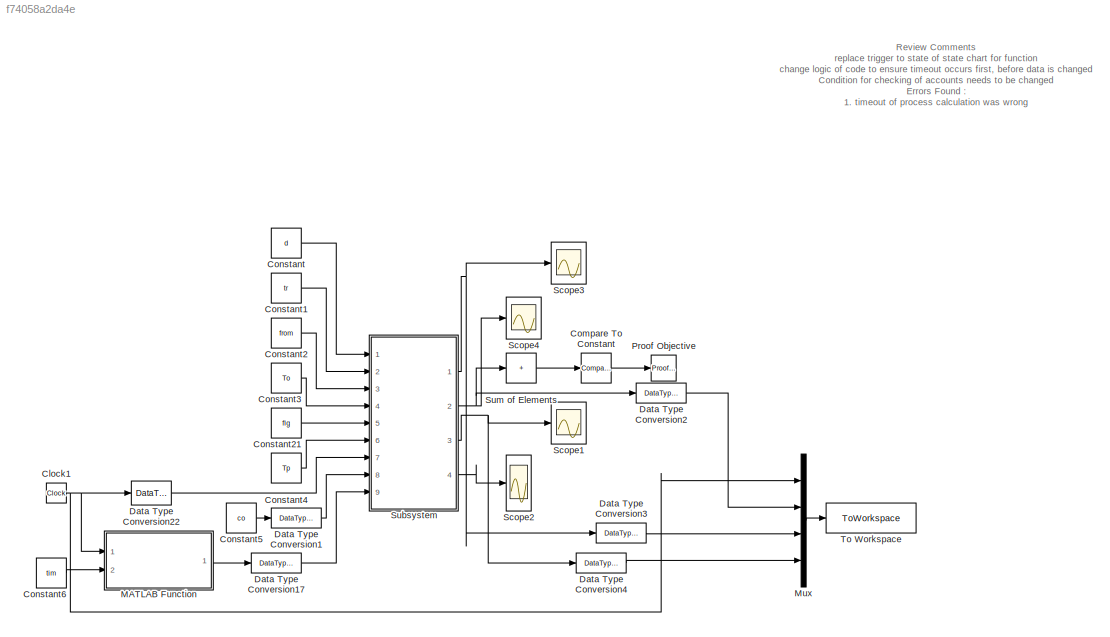
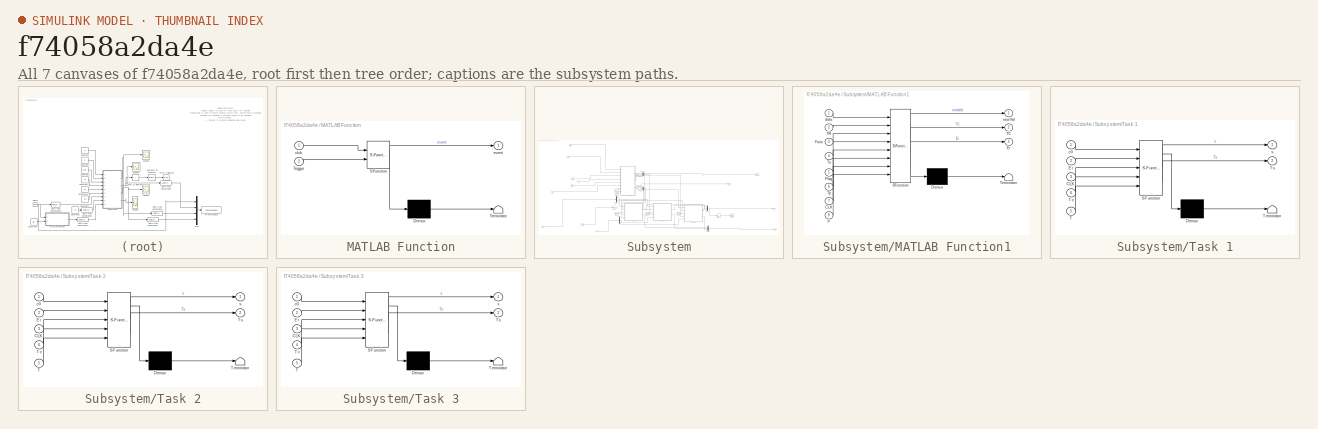
[diagram: thumbnail index - all 7 canvases of the model, root first then tree order]
MODEL slx_f74058a2da4e
KIND model
CONFIG AbsTol = auto
CONFIG EnableMultiTasking = off
CONFIG FixedStep = 1
CONFIG MaxStep = auto
CONFIG MinStep = auto
CONFIG RelTol = 1e-3
CONFIG SampleTimeConstraint = Unconstrained
CONFIG Solver = FixedStepDiscrete
CONFIG SolverName = FixedStepDiscrete
CONFIG StartTime = 0.0
CONFIG StopTime = 20.0
BLOCK [Clock] Clock1
BLOCK [Reference] Compare To Constant  REF=simulink/Logic and Bit
Operations/Compare
To Constant
  Ports = [1, 1]
  SourceBlock = simulink/Logic and Bit\nOperations/Compare\nTo Constant
  SourceProductBaseCode = SL
  SourceType = Compare To Constant
BLOCK [Constant] Constant
  OutDataTypeStr = double
  Value = d
BLOCK [Constant] Constant1
  OutDataTypeStr = double
  Value = tr
BLOCK [Constant] Constant2
  OutDataTypeStr = double
  Value = from
BLOCK [Constant] Constant21
  Value = flg
BLOCK [Constant] Constant3
  OutDataTypeStr = double
  Value = To
BLOCK [Constant] Constant4
  Value = Tp
BLOCK [Constant] Constant5
  Value = co
BLOCK [Constant] Constant6
  Value = tim
BLOCK [DataTypeConversion] Data Type Conversion1
  OutDataTypeStr = uint16
  RndMeth = Round
  SaturateOnIntegerOverflow = off
BLOCK [DataTypeConversion] Data Type Conversion17
  OutDataTypeStr = boolean
  RndMeth = Round
  SaturateOnIntegerOverflow = off
BLOCK [DataTypeConversion] Data Type Conversion2
  OutDataTypeStr = double
  RndMeth = Round
  SaturateOnIntegerOverflow = off
BLOCK [DataTypeConversion] Data Type Conversion22
  OutDataTypeStr = uint16
  RndMeth = Round
  SaturateOnIntegerOverflow = off
BLOCK [DataTypeConversion] Data Type Conversion3
  OutDataTypeStr = double
  RndMeth = Round
  SaturateOnIntegerOverflow = off
BLOCK [DataTypeConversion] Data Type Conversion4
  OutDataTypeStr = double
  RndMeth = Round
  SaturateOnIntegerOverflow = off
BLOCK [SubSystem] MATLAB Function
  ErrorFcn = Stateflow.Translate.translate
  PermitHierarchicalResolution = ExplicitOnly
  Ports = [2, 1]
  RequestExecContextInheritance = off
  SFBlockType = MATLAB Function
  TreatAsAtomicUnit = on
BLOCK [Demux] MATLAB Function/ Demux 
  Outputs = 1
  Ports = [1, 1]
BLOCK [S-Function] MATLAB Function/ SFunction 
  EnableBusSupport = on
  FunctionName = sf_sfun
  PortCounts = [2 2]
  Ports = [2, 2]
  SFcnIsStateOwnerBlock = off
  SFunctionDeploymentMode = off
  Tag = Stateflow S-Function 2
BLOCK [Terminator] MATLAB Function/ Terminator 
BLOCK [Inport] MATLAB Function/Trigger
  Port = 2
BLOCK [Inport] MATLAB Function/clck
BLOCK [Outport] MATLAB Function/event
BLOCK [Mux] Mux
  DisplayOption = bar
  Ports = [4, 1]
BLOCK [Reference] Proof Objective  REF=sldvlib/Objectives and Constraints/Proof Objective
  AttributesFormatString = %<intervals>
  NameLocation = top
  Ports = [1]
  SourceBlock = sldvlib/Objectives and Constraints/Proof Objective
  SourceProductBaseCode = SL
  SourceType = Design Verifier Proof Objective
BLOCK [Scope] Scope1
  Floating = off
  NumInputPorts = 1
  Ports = [1]
  ScopeSpecificationString = Simulink.scopes.TimeScopeBlockCfg('CurrentConfiguration', extmgr.ConfigurationSet(extmgr.Configuration('Core','General UI',true),extmgr.Configuration('Core','Source UI',true),extmgr.Configuration('Sources','WiredSimulink',true,'DataLoggingVariableName','ScopeData1'),extmgr.Configuration('Visuals','Time Domain',true,'SerializedDisplays',{struct('MinYLimReal','-0.375','MaxYLimReal','3.375','YLabelRe...<+1451ch>
BLOCK [Scope] Scope2
  Floating = off
  NumInputPorts = 3
  Ports = [3]
  ScopeSpecificationString = Simulink.scopes.TimeScopeBlockCfg('CurrentConfiguration', extmgr.ConfigurationSet(extmgr.Configuration('Core','General UI',true),extmgr.Configuration('Core','Source UI',true),extmgr.Configuration('Sources','WiredSimulink',true,'DataLoggingVariableName','ScopeData2'),extmgr.Configuration('Visuals','Time Domain',true,'SerializedDisplays',{struct('MinYLimReal','-0.125','MaxYLimReal','1.125','YLabelRe...<+1452ch>
BLOCK [Scope] Scope3
  Floating = off
  NumInputPorts = 1
  Ports = [1]
  ScopeSpecificationString = Simulink.scopes.TimeScopeBlockCfg('CurrentConfiguration', extmgr.ConfigurationSet(extmgr.Configuration('Core','General UI',true),extmgr.Configuration('Core','Source UI',true),extmgr.Configuration('Sources','WiredSimulink',true,'DataLoggingVariableName','ScopeData3'),extmgr.Configuration('Visuals','Time Domain',true,'SerializedDisplays',{struct('MinYLimReal','15.00000','MaxYLimReal','45.00000','YLa...<+1473ch>
BLOCK [Scope] Scope4
  Floating = off
  NumInputPorts = 1
  Ports = [1]
  ScopeSpecificationString = Simulink.scopes.TimeScopeBlockCfg('CurrentConfiguration', extmgr.ConfigurationSet(extmgr.Configuration('Core','General UI',true),extmgr.Configuration('Core','Source UI',true),extmgr.Configuration('Sources','WiredSimulink',true,'DataLoggingVariableName','ScopeData4'),extmgr.Configuration('Visuals','Time Domain',true,'SerializedDisplays',{struct('MinYLimReal','-0.125','MaxYLimReal','1.125','YLabelRe...<+1517ch>
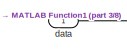
[diagram: Subsystem - part 1/8, top left region]
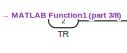
[diagram: Subsystem - part 2/8, top left region]
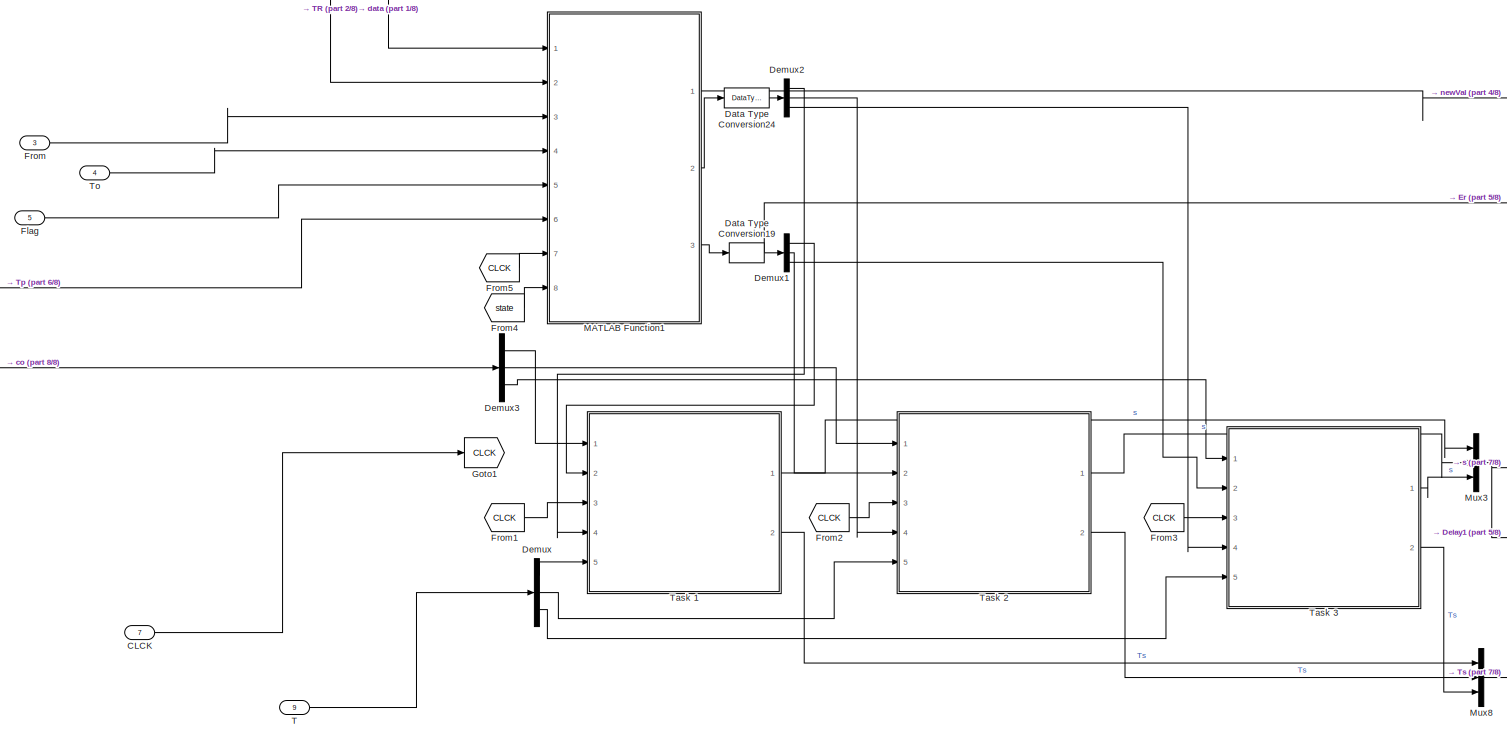
[diagram: Subsystem - part 3/8, center side, full height]
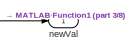
[diagram: Subsystem - part 4/8, middle right region]
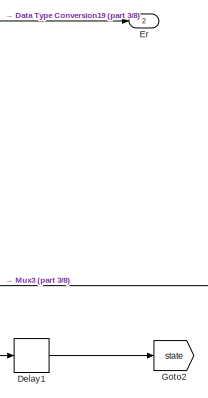
[diagram: Subsystem - part 5/8, middle right region]
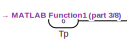
[diagram: Subsystem - part 6/8, middle left region]
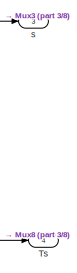
[diagram: Subsystem - part 7/8, bottom right region]
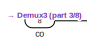
[diagram: Subsystem - part 8/8, bottom left region]
BLOCK [SubSystem] Subsystem
  Ports = [9, 4]
  RequestExecContextInheritance = off
BLOCK [Inport] Subsystem/CLCK
  Port = 7
BLOCK [DataTypeConversion] Subsystem/Data Type Conversion19
  OutDataTypeStr = uint16
  RndMeth = Round
  SaturateOnIntegerOverflow = off
BLOCK [DataTypeConversion] Subsystem/Data Type Conversion24
  OutDataTypeStr = boolean
  RndMeth = Round
  SaturateOnIntegerOverflow = off
BLOCK [Delay] Subsystem/Delay1
  DelayLength = 1
  InputPortMap = u0
  Ports = [1, 1]
BLOCK [Demux] Subsystem/Demux
  Outputs = 3
  Ports = [1, 3]
BLOCK [Demux] Subsystem/Demux1
  Outputs = 3
  Ports = [1, 3]
BLOCK [Demux] Subsystem/Demux2
  Outputs = 3
  Ports = [1, 3]
BLOCK [Demux] Subsystem/Demux3
  Outputs = 3
  Ports = [1, 3]
BLOCK [Outport] Subsystem/Er
  Port = 2
BLOCK [Inport] Subsystem/Flag
  Port = 5
BLOCK [Inport] Subsystem/From
  Port = 3
BLOCK [From] Subsystem/From1
  GotoTag = CLCK
BLOCK [From] Subsystem/From2
  GotoTag = CLCK
BLOCK [From] Subsystem/From3
  GotoTag = CLCK
BLOCK [From] Subsystem/From4
  GotoTag = state
BLOCK [From] Subsystem/From5
  GotoTag = CLCK
BLOCK [Goto] Subsystem/Goto1
  GotoTag = CLCK
BLOCK [Goto] Subsystem/Goto2
  GotoTag = state
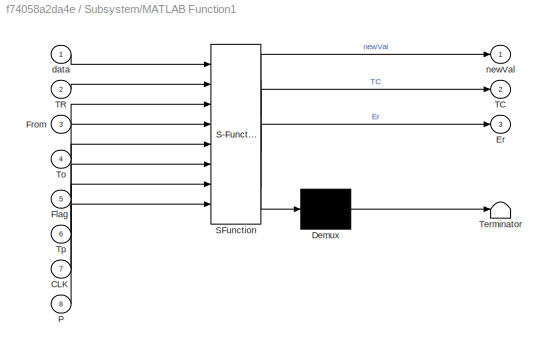
BLOCK [SubSystem] Subsystem/MATLAB Function1
  ErrorFcn = Stateflow.Translate.translate
  PermitHierarchicalResolution = ExplicitOnly
  Ports = [8, 3]
  RequestExecContextInheritance = off
  SFBlockType = MATLAB Function
  TreatAsAtomicUnit = on
BLOCK [Demux] Subsystem/MATLAB Function1/ Demux 
  Outputs = 1
  Ports = [1, 1]
BLOCK [S-Function] Subsystem/MATLAB Function1/ SFunction 
  EnableBusSupport = on
  FunctionName = sf_sfun
  PortCounts = [8 4]
  Ports = [8, 4]
  SFcnIsStateOwnerBlock = off
  SFunctionDeploymentMode = off
  Tag = Stateflow S-Function 5
BLOCK [Terminator] Subsystem/MATLAB Function1/ Terminator 
BLOCK [Inport] Subsystem/MATLAB Function1/CLK
  Port = 7
BLOCK [Outport] Subsystem/MATLAB Function1/Er
  Port = 3
BLOCK [Inport] Subsystem/MATLAB Function1/Flag
  Port = 5
BLOCK [Inport] Subsystem/MATLAB Function1/From
  Port = 3
BLOCK [Inport] Subsystem/MATLAB Function1/P
  Port = 8
BLOCK [Outport] Subsystem/MATLAB Function1/TC
  Port = 2
BLOCK [Inport] Subsystem/MATLAB Function1/TR
  Port = 2
BLOCK [Inport] Subsystem/MATLAB Function1/To
  Port = 4
BLOCK [Inport] Subsystem/MATLAB Function1/Tp
  Port = 6
BLOCK [Inport] Subsystem/MATLAB Function1/data
BLOCK [Outport] Subsystem/MATLAB Function1/newVal
BLOCK [Mux] Subsystem/Mux3
  DisplayOption = bar
  Inputs = 3
  Ports = [3, 1]
BLOCK [Mux] Subsystem/Mux8
  DisplayOption = bar
  Inputs = 3
  Ports = [3, 1]
BLOCK [Inport] Subsystem/T
  Port = 9
BLOCK [Inport] Subsystem/TR
  Port = 2
BLOCK [SubSystem] Subsystem/Task 1
  ErrorFcn = Stateflow.Translate.translate
  PermitHierarchicalResolution = ExplicitOnly
  Ports = [5, 2]
  RequestExecContextInheritance = off
  SFBlockType = Chart
  TreatAsAtomicUnit = on
BLOCK [Demux] Subsystem/Task 1/ Demux 
  Outputs = 1
  Ports = [1, 1]
BLOCK [S-Function] Subsystem/Task 1/ SFunction 
  EnableBusSupport = on
  FunctionName = sf_sfun
  PortCounts = [5 3]
  Ports = [5, 3]
  SFcnIsStateOwnerBlock = off
  SFunctionDeploymentMode = off
  Tag = Stateflow S-Function 3
BLOCK [Terminator] Subsystem/Task 1/ Terminator 
BLOCK [Inport] Subsystem/Task 1/CLK
  Port = 3
BLOCK [Inport] Subsystem/Task 1/Er
  Port = 2
BLOCK [Inport] Subsystem/Task 1/T
  Port = 5
BLOCK [Inport] Subsystem/Task 1/Tc
  Port = 4
BLOCK [Outport] Subsystem/Task 1/Ts
  Port = 2
BLOCK [Inport] Subsystem/Task 1/c0
BLOCK [Outport] Subsystem/Task 1/s
BLOCK [SubSystem] Subsystem/Task 2
  ErrorFcn = Stateflow.Translate.translate
  PermitHierarchicalResolution = ExplicitOnly
  Ports = [5, 2]
  RequestExecContextInheritance = off
  SFBlockType = Chart
  TreatAsAtomicUnit = on
BLOCK [Demux] Subsystem/Task 2/ Demux 
  Outputs = 1
  Ports = [1, 1]
BLOCK [S-Function] Subsystem/Task 2/ SFunction 
  EnableBusSupport = on
  FunctionName = sf_sfun
  PortCounts = [5 3]
  Ports = [5, 3]
  SFcnIsStateOwnerBlock = off
  SFunctionDeploymentMode = off
  Tag = Stateflow S-Function 1
BLOCK [Terminator] Subsystem/Task 2/ Terminator 
BLOCK [Inport] Subsystem/Task 2/CLK
  Port = 3
BLOCK [Inport] Subsystem/Task 2/Er
  Port = 2
BLOCK [Inport] Subsystem/Task 2/T
  Port = 5
BLOCK [Inport] Subsystem/Task 2/Tc
  Port = 4
BLOCK [Outport] Subsystem/Task 2/Ts
  Port = 2
BLOCK [Inport] Subsystem/Task 2/c0
BLOCK [Outport] Subsystem/Task 2/s
BLOCK [SubSystem] Subsystem/Task 3
  ErrorFcn = Stateflow.Translate.translate
  PermitHierarchicalResolution = ExplicitOnly
  Ports = [5, 2]
  RequestExecContextInheritance = off
  SFBlockType = Chart
  TreatAsAtomicUnit = on
BLOCK [Demux] Subsystem/Task 3/ Demux 
  Outputs = 1
  Ports = [1, 1]
BLOCK [S-Function] Subsystem/Task 3/ SFunction 
  EnableBusSupport = on
  FunctionName = sf_sfun
  PortCounts = [5 3]
  Ports = [5, 3]
  SFcnIsStateOwnerBlock = off
  SFunctionDeploymentMode = off
  Tag = Stateflow S-Function 4
BLOCK [Terminator] Subsystem/Task 3/ Terminator 
BLOCK [Inport] Subsystem/Task 3/CLK
  Port = 3
BLOCK [Inport] Subsystem/Task 3/Er
  Port = 2
BLOCK [Inport] Subsystem/Task 3/T
  Port = 5
BLOCK [Inport] Subsystem/Task 3/Tc
  Port = 4
BLOCK [Outport] Subsystem/Task 3/Ts
  Port = 2
BLOCK [Inport] Subsystem/Task 3/c0
BLOCK [Outport] Subsystem/Task 3/s
BLOCK [Inport] Subsystem/To
  Port = 4
BLOCK [Inport] Subsystem/Tp
  Port = 6
BLOCK [Outport] Subsystem/Ts
  Port = 4
BLOCK [Inport] Subsystem/co
  Port = 8
BLOCK [Inport] Subsystem/data
BLOCK [Outport] Subsystem/newVal
BLOCK [Outport] Subsystem/s
  Port = 3
BLOCK [Sum] Sum of Elements
  IconShape = rectangular
  Inputs = +
  Ports = [1, 1]
BLOCK [ToWorkspace] To Workspace
  FixptAsFi = on
  MaxDataPoints = inf
  Ports = [1]
  SampleTime = -1
  Save2DSignal = 2-D array (concatenate along first dimension)
  VariableName = simout
ANNOTATION (root): Review Comments replace trigger to state of state chart for function change logic of code to ensure timeout occurs first, before data is changed Condition for checking of accounts needs to be changed Errors Found : 1. timeout of process calculation was wrong 2. Priority order of state 2 and 3 transitions 3. State output if error feedback to function - state output > overall time function time > pr...<+10ch>
NET Clock1:1 -> Data Type Conversion22:1, MATLAB Function:1, Mux:1
LINE Compare To Constant:1 -> Proof Objective:1
LINE Constant1:1 -> Subsystem:2
LINE Constant21:1 -> Subsystem:5
LINE Constant2:1 -> Subsystem:3
LINE Constant3:1 -> Subsystem:4
LINE Constant4:1 -> Subsystem:6
LINE Constant5:1 -> Data Type Conversion1:1
LINE Constant6:1 -> MATLAB Function:2
LINE Constant:1 -> Subsystem:1
LINE Data Type Conversion17:1 -> Subsystem:9
LINE Data Type Conversion1:1 -> Subsystem:8
LINE Data Type Conversion22:1 -> Subsystem:7
LINE Data Type Conversion2:1 -> Mux:2
LINE Data Type Conversion3:1 -> Mux:3
LINE Data Type Conversion4:1 -> Mux:4
LINE MATLAB Function:1 -> Data Type Conversion17:1
LINE Mux:1 -> To Workspace:1
LINE Subsystem/CLCK:1 -> Subsystem/Goto1:1
NET Subsystem/Data Type Conversion19:1 -> Subsystem/Demux1:1, Subsystem/Er:1
LINE Subsystem/Data Type Conversion24:1 -> Subsystem/Demux2:1
LINE Subsystem/Delay1:1 -> Subsystem/Goto2:1
LINE Subsystem/Demux1:1 -> Subsystem/Task 1:2
LINE Subsystem/Demux1:2 -> Subsystem/Task 2:2
LINE Subsystem/Demux1:3 -> Subsystem/Task 3:2
LINE Subsystem/Demux2:1 -> Subsystem/Task 1:4
LINE Subsystem/Demux2:2 -> Subsystem/Task 2:4
LINE Subsystem/Demux2:3 -> Subsystem/Task 3:4
LINE Subsystem/Demux3:1 -> Subsystem/Task 1:1
LINE Subsystem/Demux3:2 -> Subsystem/Task 2:1
LINE Subsystem/Demux3:3 -> Subsystem/Task 3:1
LINE Subsystem/Demux:1 -> Subsystem/Task 1:5
LINE Subsystem/Demux:2 -> Subsystem/Task 2:5
LINE Subsystem/Demux:3 -> Subsystem/Task 3:5
LINE Subsystem/Flag:1 -> Subsystem/MATLAB Function1:5
LINE Subsystem/From1:1 -> Subsystem/Task 1:3
LINE Subsystem/From2:1 -> Subsystem/Task 2:3
LINE Subsystem/From3:1 -> Subsystem/Task 3:3
LINE Subsystem/From4:1 -> Subsystem/MATLAB Function1:8
LINE Subsystem/From5:1 -> Subsystem/MATLAB Function1:7
LINE Subsystem/From:1 -> Subsystem/MATLAB Function1:3
LINE Subsystem/MATLAB Function1:1 -> Subsystem/newVal:1
LINE Subsystem/MATLAB Function1:2 -> Subsystem/Data Type Conversion24:1
LINE Subsystem/MATLAB Function1:3 -> Subsystem/Data Type Conversion19:1
NET Subsystem/Mux3:1 -> Subsystem/Delay1:1, Subsystem/s:1
LINE Subsystem/Mux8:1 -> Subsystem/Ts:1
LINE Subsystem/T:1 -> Subsystem/Demux:1
LINE Subsystem/TR:1 -> Subsystem/MATLAB Function1:2
LINE Subsystem/Task 1:1 -> Subsystem/Mux3:1
LINE Subsystem/Task 1:2 -> Subsystem/Mux8:1
LINE Subsystem/Task 2:1 -> Subsystem/Mux3:2
LINE Subsystem/Task 2:2 -> Subsystem/Mux8:2
LINE Subsystem/Task 3:1 -> Subsystem/Mux3:3
LINE Subsystem/Task 3:2 -> Subsystem/Mux8:3
LINE Subsystem/To:1 -> Subsystem/MATLAB Function1:4
LINE Subsystem/Tp:1 -> Subsystem/MATLAB Function1:6
LINE Subsystem/co:1 -> Subsystem/Demux3:1
LINE Subsystem/data:1 -> Subsystem/MATLAB Function1:1
NET Subsystem:1 -> Data Type Conversion3:1, Scope3:1
NET Subsystem:2 -> Data Type Conversion2:1, Scope4:1, Sum of Elements:1
NET Subsystem:3 -> Data Type Conversion4:1, Scope1:1
LINE Subsystem:4 -> Scope2:2
LINE Sum of Elements:1 -> Compare To Constant:1
note: NET lines group one-source signal fan-out (src -> all destinations, sorted); 1:1 wires keep LINE
CHART Subsystem/Task 3 states=4 transitions=6
  STATE_LABEL 'Transact\nen:\ns = 1;\nTs = CLK;\ndu:\nc = c+1;\n'
  STATE_LABEL 'Idle\nen:\nc = 0;\ns = 0;\nTs = 0;'
  STATE_LABEL 'Error\nen:\ns = 2;'
  STATE_LABEL 'Error1\nen:\ns = 3;'
CHART Subsystem/MATLAB Function1 states=1 transitions=1
  STATE_LABEL 'eML_blk_kernel()'
  STATE_LABEL 'SCRIPT:\nfunction [newVal, TC, Er] = fcn(data, TR, From, To, Flag, Tp, CLK, P)\npersistent d\npersistent f\npersistent TC1\npersistent Er1\npersistent timeo\npersistent init\npersistent From1\npersistent To1\npersistent TR1\nif(isempty(From1))\n    From1 = [1;1;1];\nend\nif(isempty(To1))\n    To1 = [1;1;1];\nend\nif(isempty(TR1))\n    TR1 = [1;1;1];\nend\nif(isempty(d))\n    d = [0;0;0];\nend\nif(isempty(init))\n    init...<+956ch>'
CHART Subsystem/Task 2 states=4 transitions=6
  STATE_LABEL 'Transact\nen:\ns = 1;\nTs = CLK;\ndu:\nc = c+1;\n'
  STATE_LABEL 'Idle\nen:\nc = 0;\ns = 0;\nTs = 0;'
  STATE_LABEL 'Error\nen:\ns = 2;'
  STATE_LABEL 'Error1\nen:\ns = 3;'
CHART MATLAB Function states=1 transitions=1
  STATE_LABEL 'eML_blk_kernel()'
  STATE_LABEL 'SCRIPT:\nfunction event = fcn(clck, Trigger)\n    event = clck==Trigger;'
CHART Subsystem/Task 1 states=4 transitions=6
  STATE_LABEL 'Transact\nen:\ns = 1;\nTs = CLK;\ndu:\nc = c+1;\n'
  STATE_LABEL 'Idle\nen:\nc = 0;\ns = 0;\nTs = 0;'
  STATE_LABEL 'Error\nen:\ns = 2;'
  STATE_LABEL 'Error1\nen:\ns = 3;'
CHART  states=0 transitions=0
CHART  states=0 transitions=0
CHART  states=0 transitions=0
CHART  states=0 transitions=0
CHART  states=0 transitions=0
